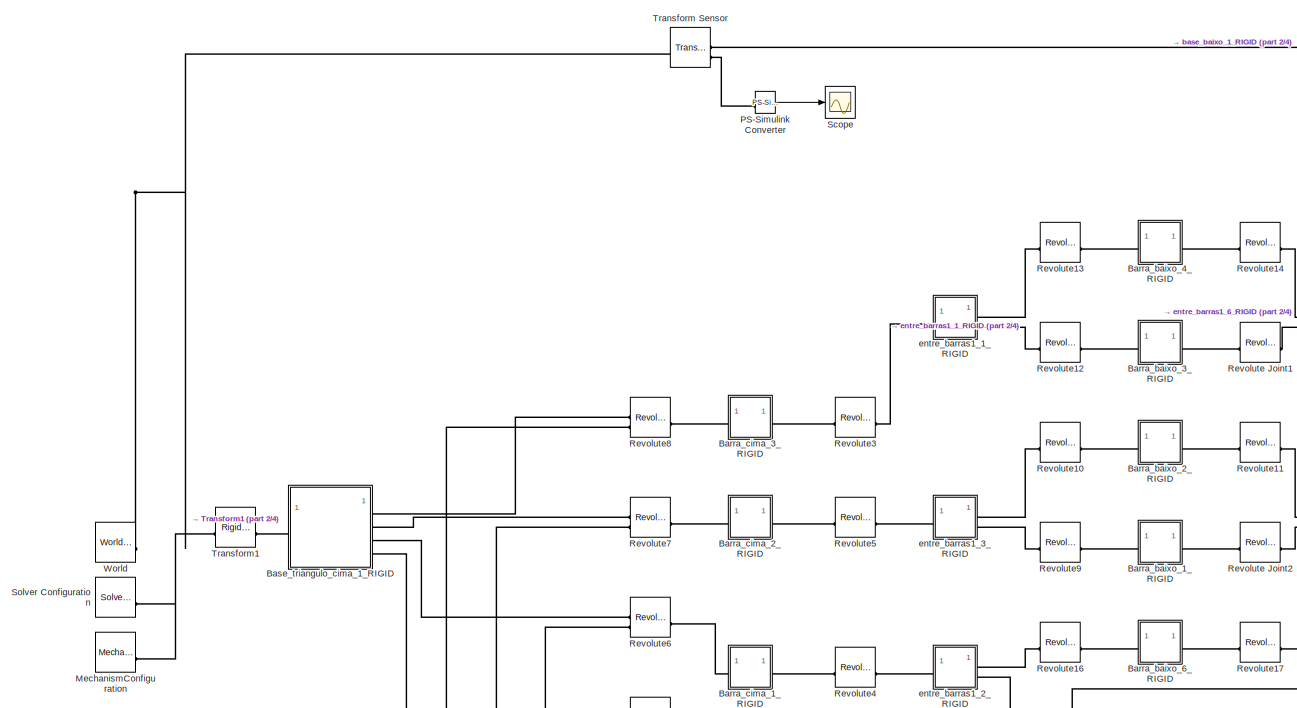
[diagram: root canvas - part 1/4, central region]
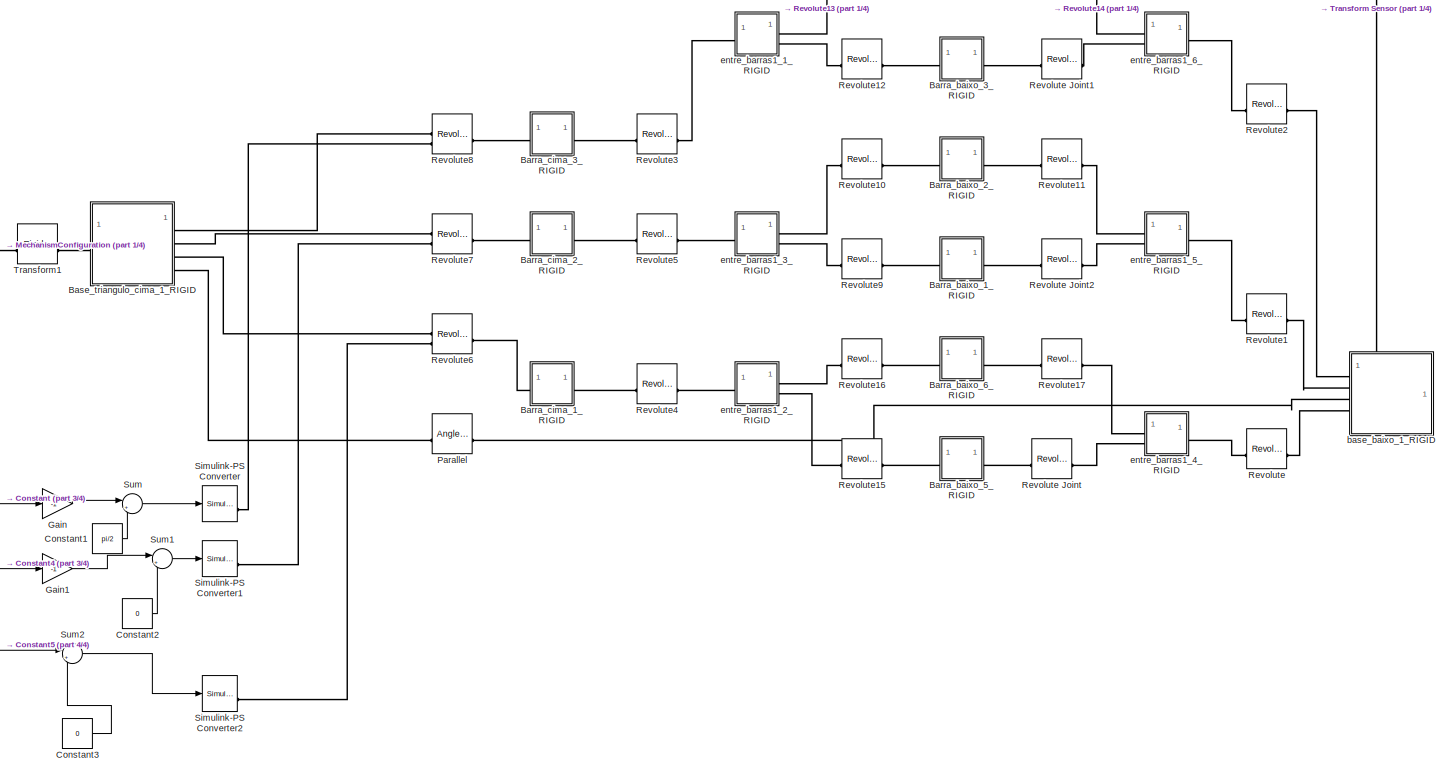
[diagram: root canvas - part 2/4, full width, middle band]
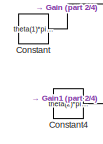
[diagram: root canvas - part 3/4, bottom left region]
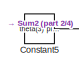
[diagram: root canvas - part 4/4, bottom left region]
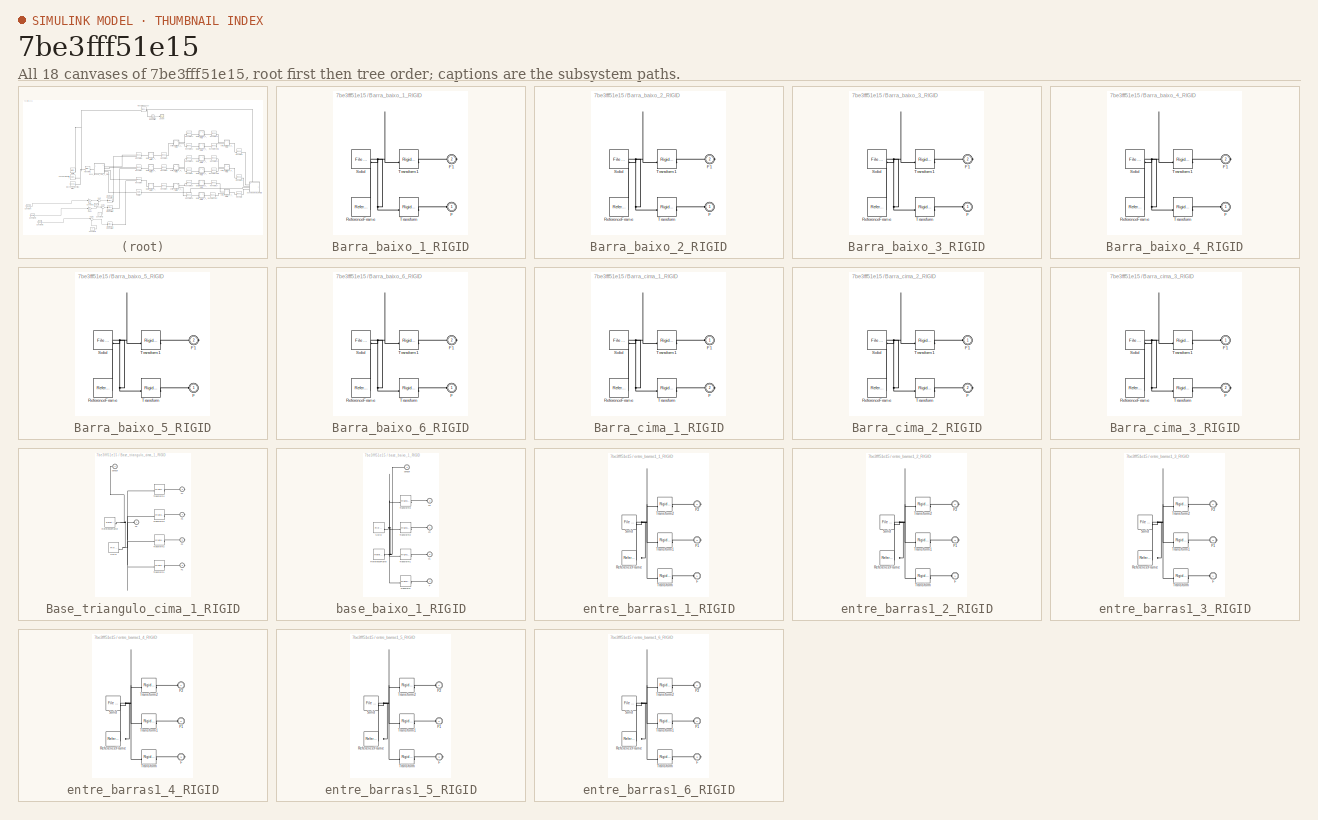
[diagram: thumbnail index - all 18 canvases of the model, root first then tree order]
MODEL slx_7be3fff51e15
KIND model
CONFIG AbsTol = auto
CONFIG EnableMultiTasking = off
CONFIG FixedStep = auto
CONFIG MaxStep = auto
CONFIG MinStep = auto
CONFIG RelTol = 1e-3
CONFIG SampleTimeConstraint = Unconstrained
CONFIG SolverName = VariableStepAuto
CONFIG StartTime = 0.0
CONFIG StopTime = 10.0
WORKSPACE source: external: MATLAB File  (data not in archive)
BLOCK [SubSystem] Barra_baixo_1_RIGID
BLOCK [PMIOPort] Barra_baixo_1_RIGID/F
  Side = Left
BLOCK [PMIOPort] Barra_baixo_1_RIGID/F1
  Port = 2
  Side = Right
BLOCK [Reference] Barra_baixo_1_RIGID/ReferenceFrame  REF=sm_lib/Frames and
Transforms/Reference
Frame
  SourceBlock = sm_lib/Frames and\nTransforms/Reference\nFrame
  SourceType = Reference\nFrame
BLOCK [Reference] Barra_baixo_1_RIGID/Solid  REF=sm_lib/Body Elements/File Solid
  SourceBlock = sm_lib/Body Elements/File Solid
  SourceType = File Solid
BLOCK [Reference] Barra_baixo_1_RIGID/Transform  REF=sm_lib/Frames and
Transforms/Rigid
Transform
  SourceBlock = sm_lib/Frames and\nTransforms/Rigid\nTransform
  SourceType = Rigid\nTransform
BLOCK [Reference] Barra_baixo_1_RIGID/Transform1  REF=sm_lib/Frames and
Transforms/Rigid
Transform
  SourceBlock = sm_lib/Frames and\nTransforms/Rigid\nTransform
  SourceType = Rigid\nTransform
BLOCK [SubSystem] Barra_baixo_2_RIGID
BLOCK [PMIOPort] Barra_baixo_2_RIGID/F
  Side = Left
BLOCK [PMIOPort] Barra_baixo_2_RIGID/F1
  Port = 2
  Side = Right
BLOCK [Reference] Barra_baixo_2_RIGID/ReferenceFrame  REF=sm_lib/Frames and
Transforms/Reference
Frame
  SourceBlock = sm_lib/Frames and\nTransforms/Reference\nFrame
  SourceType = Reference\nFrame
BLOCK [Reference] Barra_baixo_2_RIGID/Solid  REF=sm_lib/Body Elements/File Solid
  SourceBlock = sm_lib/Body Elements/File Solid
  SourceType = File Solid
BLOCK [Reference] Barra_baixo_2_RIGID/Transform  REF=sm_lib/Frames and
Transforms/Rigid
Transform
  SourceBlock = sm_lib/Frames and\nTransforms/Rigid\nTransform
  SourceType = Rigid\nTransform
BLOCK [Reference] Barra_baixo_2_RIGID/Transform1  REF=sm_lib/Frames and
Transforms/Rigid
Transform
  SourceBlock = sm_lib/Frames and\nTransforms/Rigid\nTransform
  SourceType = Rigid\nTransform
BLOCK [SubSystem] Barra_baixo_3_RIGID
BLOCK [PMIOPort] Barra_baixo_3_RIGID/F
  Side = Left
BLOCK [PMIOPort] Barra_baixo_3_RIGID/F1
  Port = 2
  Side = Right
BLOCK [Reference] Barra_baixo_3_RIGID/ReferenceFrame  REF=sm_lib/Frames and
Transforms/Reference
Frame
  SourceBlock = sm_lib/Frames and\nTransforms/Reference\nFrame
  SourceType = Reference\nFrame
BLOCK [Reference] Barra_baixo_3_RIGID/Solid  REF=sm_lib/Body Elements/File Solid
  SourceBlock = sm_lib/Body Elements/File Solid
  SourceType = File Solid
BLOCK [Reference] Barra_baixo_3_RIGID/Transform  REF=sm_lib/Frames and
Transforms/Rigid
Transform
  SourceBlock = sm_lib/Frames and\nTransforms/Rigid\nTransform
  SourceType = Rigid\nTransform
BLOCK [Reference] Barra_baixo_3_RIGID/Transform1  REF=sm_lib/Frames and
Transforms/Rigid
Transform
  SourceBlock = sm_lib/Frames and\nTransforms/Rigid\nTransform
  SourceType = Rigid\nTransform
BLOCK [SubSystem] Barra_baixo_4_RIGID
BLOCK [PMIOPort] Barra_baixo_4_RIGID/F
  Side = Left
BLOCK [PMIOPort] Barra_baixo_4_RIGID/F1
  Port = 2
  Side = Right
BLOCK [Reference] Barra_baixo_4_RIGID/ReferenceFrame  REF=sm_lib/Frames and
Transforms/Reference
Frame
  SourceBlock = sm_lib/Frames and\nTransforms/Reference\nFrame
  SourceType = Reference\nFrame
BLOCK [Reference] Barra_baixo_4_RIGID/Solid  REF=sm_lib/Body Elements/File Solid
  SourceBlock = sm_lib/Body Elements/File Solid
  SourceType = File Solid
BLOCK [Reference] Barra_baixo_4_RIGID/Transform  REF=sm_lib/Frames and
Transforms/Rigid
Transform
  SourceBlock = sm_lib/Frames and\nTransforms/Rigid\nTransform
  SourceType = Rigid\nTransform
BLOCK [Reference] Barra_baixo_4_RIGID/Transform1  REF=sm_lib/Frames and
Transforms/Rigid
Transform
  SourceBlock = sm_lib/Frames and\nTransforms/Rigid\nTransform
  SourceType = Rigid\nTransform
BLOCK [SubSystem] Barra_baixo_5_RIGID
BLOCK [PMIOPort] Barra_baixo_5_RIGID/F
  Side = Left
BLOCK [PMIOPort] Barra_baixo_5_RIGID/F1
  Port = 2
  Side = Right
BLOCK [Reference] Barra_baixo_5_RIGID/ReferenceFrame  REF=sm_lib/Frames and
Transforms/Reference
Frame
  SourceBlock = sm_lib/Frames and\nTransforms/Reference\nFrame
  SourceType = Reference\nFrame
BLOCK [Reference] Barra_baixo_5_RIGID/Solid  REF=sm_lib/Body Elements/File Solid
  SourceBlock = sm_lib/Body Elements/File Solid
  SourceType = File Solid
BLOCK [Reference] Barra_baixo_5_RIGID/Transform  REF=sm_lib/Frames and
Transforms/Rigid
Transform
  SourceBlock = sm_lib/Frames and\nTransforms/Rigid\nTransform
  SourceType = Rigid\nTransform
BLOCK [Reference] Barra_baixo_5_RIGID/Transform1  REF=sm_lib/Frames and
Transforms/Rigid
Transform
  SourceBlock = sm_lib/Frames and\nTransforms/Rigid\nTransform
  SourceType = Rigid\nTransform
BLOCK [SubSystem] Barra_baixo_6_RIGID
BLOCK [PMIOPort] Barra_baixo_6_RIGID/F
  Side = Left
BLOCK [PMIOPort] Barra_baixo_6_RIGID/F1
  Port = 2
  Side = Right
BLOCK [Reference] Barra_baixo_6_RIGID/ReferenceFrame  REF=sm_lib/Frames and
Transforms/Reference
Frame
  SourceBlock = sm_lib/Frames and\nTransforms/Reference\nFrame
  SourceType = Reference\nFrame
BLOCK [Reference] Barra_baixo_6_RIGID/Solid  REF=sm_lib/Body Elements/File Solid
  SourceBlock = sm_lib/Body Elements/File Solid
  SourceType = File Solid
BLOCK [Reference] Barra_baixo_6_RIGID/Transform  REF=sm_lib/Frames and
Transforms/Rigid
Transform
  SourceBlock = sm_lib/Frames and\nTransforms/Rigid\nTransform
  SourceType = Rigid\nTransform
BLOCK [Reference] Barra_baixo_6_RIGID/Transform1  REF=sm_lib/Frames and
Transforms/Rigid
Transform
  SourceBlock = sm_lib/Frames and\nTransforms/Rigid\nTransform
  SourceType = Rigid\nTransform
BLOCK [SubSystem] Barra_cima_1_RIGID
BLOCK [PMIOPort] Barra_cima_1_RIGID/F
  Port = 2
  Side = Right
BLOCK [PMIOPort] Barra_cima_1_RIGID/F1
  Side = Left
BLOCK [Reference] Barra_cima_1_RIGID/ReferenceFrame  REF=sm_lib/Frames and
Transforms/Reference
Frame
  SourceBlock = sm_lib/Frames and\nTransforms/Reference\nFrame
  SourceType = Reference\nFrame
BLOCK [Reference] Barra_cima_1_RIGID/Solid  REF=sm_lib/Body Elements/File Solid
  SourceBlock = sm_lib/Body Elements/File Solid
  SourceType = File Solid
BLOCK [Reference] Barra_cima_1_RIGID/Transform  REF=sm_lib/Frames and
Transforms/Rigid
Transform
  SourceBlock = sm_lib/Frames and\nTransforms/Rigid\nTransform
  SourceType = Rigid\nTransform
BLOCK [Reference] Barra_cima_1_RIGID/Transform1  REF=sm_lib/Frames and
Transforms/Rigid
Transform
  SourceBlock = sm_lib/Frames and\nTransforms/Rigid\nTransform
  SourceType = Rigid\nTransform
BLOCK [SubSystem] Barra_cima_2_RIGID
BLOCK [PMIOPort] Barra_cima_2_RIGID/F
  Port = 2
  Side = Right
BLOCK [PMIOPort] Barra_cima_2_RIGID/F1
  Side = Left
BLOCK [Reference] Barra_cima_2_RIGID/ReferenceFrame  REF=sm_lib/Frames and
Transforms/Reference
Frame
  SourceBlock = sm_lib/Frames and\nTransforms/Reference\nFrame
  SourceType = Reference\nFrame
BLOCK [Reference] Barra_cima_2_RIGID/Solid  REF=sm_lib/Body Elements/File Solid
  SourceBlock = sm_lib/Body Elements/File Solid
  SourceType = File Solid
BLOCK [Reference] Barra_cima_2_RIGID/Transform  REF=sm_lib/Frames and
Transforms/Rigid
Transform
  SourceBlock = sm_lib/Frames and\nTransforms/Rigid\nTransform
  SourceType = Rigid\nTransform
BLOCK [Reference] Barra_cima_2_RIGID/Transform1  REF=sm_lib/Frames and
Transforms/Rigid
Transform
  SourceBlock = sm_lib/Frames and\nTransforms/Rigid\nTransform
  SourceType = Rigid\nTransform
BLOCK [SubSystem] Barra_cima_3_RIGID
BLOCK [PMIOPort] Barra_cima_3_RIGID/F
  Port = 2
  Side = Right
BLOCK [PMIOPort] Barra_cima_3_RIGID/F1
  Side = Left
BLOCK [Reference] Barra_cima_3_RIGID/ReferenceFrame  REF=sm_lib/Frames and
Transforms/Reference
Frame
  SourceBlock = sm_lib/Frames and\nTransforms/Reference\nFrame
  SourceType = Reference\nFrame
BLOCK [Reference] Barra_cima_3_RIGID/Solid  REF=sm_lib/Body Elements/File Solid
  SourceBlock = sm_lib/Body Elements/File Solid
  SourceType = File Solid
BLOCK [Reference] Barra_cima_3_RIGID/Transform  REF=sm_lib/Frames and
Transforms/Rigid
Transform
  SourceBlock = sm_lib/Frames and\nTransforms/Rigid\nTransform
  SourceType = Rigid\nTransform
BLOCK [Reference] Barra_cima_3_RIGID/Transform1  REF=sm_lib/Frames and
Transforms/Rigid
Transform
  SourceBlock = sm_lib/Frames and\nTransforms/Rigid\nTransform
  SourceType = Rigid\nTransform
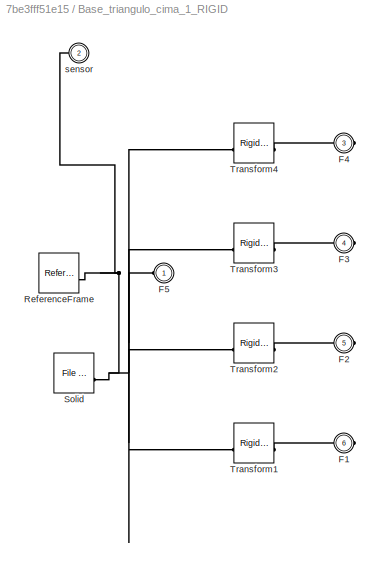
BLOCK [SubSystem] Base_triangulo_cima_1_RIGID
  PortSchema = {"entries":[{"content":{"sides":[{"content":{"connectorIds":["LConn1"]},"type":"ConnectorPlacement.EquallySpacedRectSide","uuid":"79af7b8c-6ca0-45b7-9e09-637c2dbccbeb"},{"content":{"connectorIds":["RConn1","RConn2","RConn3","RConn4"],"side":"RIGHT"},"type":"ConnectorPlacement.EquallySpacedRectSide","uuid":"ab83d0b6-8cd2-43f9-bfa3-9ec35b91d7b6"},{"content":{"connectorIds":["LConn2"],"side":"TOP"},"...<+280ch>
BLOCK [PMIOPort] Base_triangulo_cima_1_RIGID/F1
  Port = 6
  Side = Right
BLOCK [PMIOPort] Base_triangulo_cima_1_RIGID/F2
  Port = 5
  Side = Right
BLOCK [PMIOPort] Base_triangulo_cima_1_RIGID/F3
  Port = 4
  Side = Right
BLOCK [PMIOPort] Base_triangulo_cima_1_RIGID/F4
  Port = 3
  Side = Right
BLOCK [PMIOPort] Base_triangulo_cima_1_RIGID/F5
  Side = Left
BLOCK [Reference] Base_triangulo_cima_1_RIGID/ReferenceFrame  REF=sm_lib/Frames and
Transforms/Reference
Frame
  SourceBlock = sm_lib/Frames and\nTransforms/Reference\nFrame
  SourceType = Reference\nFrame
BLOCK [Reference] Base_triangulo_cima_1_RIGID/Solid  REF=sm_lib/Body Elements/File Solid
  SourceBlock = sm_lib/Body Elements/File Solid
  SourceType = File Solid
BLOCK [Reference] Base_triangulo_cima_1_RIGID/Transform1  REF=sm_lib/Frames and
Transforms/Rigid
Transform
  SourceBlock = sm_lib/Frames and\nTransforms/Rigid\nTransform
  SourceType = Rigid\nTransform
BLOCK [Reference] Base_triangulo_cima_1_RIGID/Transform2  REF=sm_lib/Frames and
Transforms/Rigid
Transform
  SourceBlock = sm_lib/Frames and\nTransforms/Rigid\nTransform
  SourceType = Rigid\nTransform
BLOCK [Reference] Base_triangulo_cima_1_RIGID/Transform3  REF=sm_lib/Frames and
Transforms/Rigid
Transform
  SourceBlock = sm_lib/Frames and\nTransforms/Rigid\nTransform
  SourceType = Rigid\nTransform
BLOCK [Reference] Base_triangulo_cima_1_RIGID/Transform4  REF=sm_lib/Frames and
Transforms/Rigid
Transform
  SourceBlock = sm_lib/Frames and\nTransforms/Rigid\nTransform
  SourceType = Rigid\nTransform
BLOCK [PMIOPort] Base_triangulo_cima_1_RIGID/sensor
  Port = 2
  Side = Left
BLOCK [Constant] Constant
  Value = theta(1)*pi/180
BLOCK [Constant] Constant1
  Value = pi/2
BLOCK [Constant] Constant2
  Value = 0
BLOCK [Constant] Constant3
  Value = 0
BLOCK [Constant] Constant4
  Value = theta(2)*pi/180
BLOCK [Constant] Constant5
  Value = theta(3)*pi/180
BLOCK [Gain] Gain
  Gain = -1
BLOCK [Gain] Gain1
  Gain = -1
BLOCK [Reference] MechanismConfiguration  REF=sm_lib/Utilities/Mechanism
Configuration
  SourceBlock = sm_lib/Utilities/Mechanism\nConfiguration
  SourceType = Mechanism\nConfiguration
BLOCK [Reference] PS-Simulink Converter  REF=nesl_utility/PS-Simulink
Converter
  SourceBlock = nesl_utility/PS-Simulink\nConverter
  SourceType = PS-Simulink\nConverter
BLOCK [Reference] Parallel  REF=sm_lib/Constraints/Angle
Constraint
  SourceBlock = sm_lib/Constraints/Angle\nConstraint
  SourceType = Angle\nConstraint
BLOCK [Reference] Revolute  REF=sm_lib/Joints/Revolute Joint
  SourceBlock = sm_lib/Joints/Revolute Joint
  SourceType = Revolute Joint
BLOCK [Reference] Revolute Joint  REF=sm_lib/Joints/Revolute Joint
  SourceBlock = sm_lib/Joints/Revolute Joint
  SourceType = Revolute Joint
BLOCK [Reference] Revolute Joint1  REF=sm_lib/Joints/Revolute Joint
  SourceBlock = sm_lib/Joints/Revolute Joint
  SourceType = Revolute Joint
BLOCK [Reference] Revolute Joint2  REF=sm_lib/Joints/Revolute Joint
  SourceBlock = sm_lib/Joints/Revolute Joint
  SourceType = Revolute Joint
BLOCK [Reference] Revolute1  REF=sm_lib/Joints/Revolute Joint
  SourceBlock = sm_lib/Joints/Revolute Joint
  SourceType = Revolute Joint
BLOCK [Reference] Revolute10  REF=sm_lib/Joints/Revolute Joint
  SourceBlock = sm_lib/Joints/Revolute Joint
  SourceType = Revolute Joint
BLOCK [Reference] Revolute11  REF=sm_lib/Joints/Revolute Joint
  SourceBlock = sm_lib/Joints/Revolute Joint
  SourceType = Revolute Joint
BLOCK [Reference] Revolute12  REF=sm_lib/Joints/Revolute Joint
  SourceBlock = sm_lib/Joints/Revolute Joint
  SourceType = Revolute Joint
BLOCK [Reference] Revolute13  REF=sm_lib/Joints/Revolute Joint
  SourceBlock = sm_lib/Joints/Revolute Joint
  SourceType = Revolute Joint
BLOCK [Reference] Revolute14  REF=sm_lib/Joints/Revolute Joint
  SourceBlock = sm_lib/Joints/Revolute Joint
  SourceType = Revolute Joint
BLOCK [Reference] Revolute15  REF=sm_lib/Joints/Revolute Joint
  SourceBlock = sm_lib/Joints/Revolute Joint
  SourceType = Revolute Joint
BLOCK [Reference] Revolute16  REF=sm_lib/Joints/Revolute Joint
  SourceBlock = sm_lib/Joints/Revolute Joint
  SourceType = Revolute Joint
BLOCK [Reference] Revolute17  REF=sm_lib/Joints/Revolute Joint
  SourceBlock = sm_lib/Joints/Revolute Joint
  SourceType = Revolute Joint
BLOCK [Reference] Revolute2  REF=sm_lib/Joints/Revolute Joint
  SourceBlock = sm_lib/Joints/Revolute Joint
  SourceType = Revolute Joint
BLOCK [Reference] Revolute3  REF=sm_lib/Joints/Revolute Joint
  SourceBlock = sm_lib/Joints/Revolute Joint
  SourceType = Revolute Joint
BLOCK [Reference] Revolute4  REF=sm_lib/Joints/Revolute Joint
  SourceBlock = sm_lib/Joints/Revolute Joint
  SourceType = Revolute Joint
BLOCK [Reference] Revolute5  REF=sm_lib/Joints/Revolute Joint
  SourceBlock = sm_lib/Joints/Revolute Joint
  SourceType = Revolute Joint
BLOCK [Reference] Revolute6  REF=sm_lib/Joints/Revolute Joint
  SourceBlock = sm_lib/Joints/Revolute Joint
  SourceType = Revolute Joint
BLOCK [Reference] Revolute7  REF=sm_lib/Joints/Revolute Joint
  SourceBlock = sm_lib/Joints/Revolute Joint
  SourceType = Revolute Joint
BLOCK [Reference] Revolute8  REF=sm_lib/Joints/Revolute Joint
  SourceBlock = sm_lib/Joints/Revolute Joint
  SourceType = Revolute Joint
BLOCK [Reference] Revolute9  REF=sm_lib/Joints/Revolute Joint
  SourceBlock = sm_lib/Joints/Revolute Joint
  SourceType = Revolute Joint
BLOCK [Scope] Scope
  Floating = off
  NumInputPorts = 1
  ScopeSpecificationString = Simulink.scopes.TimeScopeBlockCfg('CurrentConfiguration', extmgr.ConfigurationSet(extmgr.Configuration('Core','General UI',true),extmgr.Configuration('Core','Source UI',true),extmgr.Configuration('Sources','WiredSimulink',true),extmgr.Configuration('Visuals','Time Domain',true,'SerializedDisplays',{struct('MinYLimReal','-0.90667255646591','MaxYLimReal','-0.906672556465884','YLabelReal','','MinYLim...<+1508ch>
BLOCK [Reference] Simulink-PS Converter  REF=nesl_utility/Simulink-PS
Converter
  SourceBlock = nesl_utility/Simulink-PS\nConverter
  SourceType = Simulink-PS\nConverter
BLOCK [Reference] Simulink-PS Converter1  REF=nesl_utility/Simulink-PS
Converter
  SourceBlock = nesl_utility/Simulink-PS\nConverter
  SourceType = Simulink-PS\nConverter
BLOCK [Reference] Simulink-PS Converter2  REF=nesl_utility/Simulink-PS
Converter
  SourceBlock = nesl_utility/Simulink-PS\nConverter
  SourceType = Simulink-PS\nConverter
BLOCK [Reference] Solver Configuration  REF=nesl_utility/Solver
Configuration
  SourceBlock = nesl_utility/Solver\nConfiguration
  SourceType = Solver\nConfiguration
BLOCK [Sum] Sum
  Inputs = |+-
BLOCK [Sum] Sum1
  Inputs = |++
BLOCK [Sum] Sum2
  Inputs = |+-
BLOCK [Reference] Transform Sensor  REF=sm_lib/Frames and
Transforms/Transform
Sensor
  SourceBlock = sm_lib/Frames and\nTransforms/Transform\nSensor
  SourceType = Transform\nSensor
BLOCK [Reference] Transform1  REF=sm_lib/Frames and
Transforms/Rigid
Transform
  SourceBlock = sm_lib/Frames and\nTransforms/Rigid\nTransform
  SourceType = Rigid\nTransform
BLOCK [Reference] World  REF=sm_lib/Frames and
Transforms/World Frame
  SourceBlock = sm_lib/Frames and\nTransforms/World Frame
  SourceType = World Frame
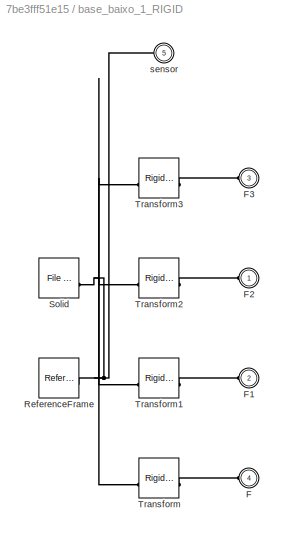
BLOCK [SubSystem] base_baixo_1_RIGID
  PortSchema = {"entries":[{"content":{"sides":[{"content":{"connectorIds":["LConn1","LConn2","LConn3","LConn4"]},"type":"ConnectorPlacement.EquallySpacedRectSide","uuid":"f734147c-4e5f-4803-8317-c979e4c113c1"},{"content":{"side":"RIGHT"},"type":"ConnectorPlacement.EquallySpacedRectSide","uuid":"b5e302f5-69e3-4c17-a1b7-9b51f74a56e4"},{"content":{"connectorIds":["LConn5"],"side":"TOP"},"type":"ConnectorPlacement....<+254ch>
BLOCK [PMIOPort] base_baixo_1_RIGID/F
  Port = 4
  Side = Left
BLOCK [PMIOPort] base_baixo_1_RIGID/F1
  Port = 2
  Side = Left
BLOCK [PMIOPort] base_baixo_1_RIGID/F2
  Side = Left
BLOCK [PMIOPort] base_baixo_1_RIGID/F3
  Port = 3
  Side = Left
BLOCK [Reference] base_baixo_1_RIGID/ReferenceFrame  REF=sm_lib/Frames and
Transforms/Reference
Frame
  SourceBlock = sm_lib/Frames and\nTransforms/Reference\nFrame
  SourceType = Reference\nFrame
BLOCK [Reference] base_baixo_1_RIGID/Solid  REF=sm_lib/Body Elements/File Solid
  SourceBlock = sm_lib/Body Elements/File Solid
  SourceType = File Solid
BLOCK [Reference] base_baixo_1_RIGID/Transform  REF=sm_lib/Frames and
Transforms/Rigid
Transform
  SourceBlock = sm_lib/Frames and\nTransforms/Rigid\nTransform
  SourceType = Rigid\nTransform
BLOCK [Reference] base_baixo_1_RIGID/Transform1  REF=sm_lib/Frames and
Transforms/Rigid
Transform
  SourceBlock = sm_lib/Frames and\nTransforms/Rigid\nTransform
  SourceType = Rigid\nTransform
BLOCK [Reference] base_baixo_1_RIGID/Transform2  REF=sm_lib/Frames and
Transforms/Rigid
Transform
  SourceBlock = sm_lib/Frames and\nTransforms/Rigid\nTransform
  SourceType = Rigid\nTransform
BLOCK [Reference] base_baixo_1_RIGID/Transform3  REF=sm_lib/Frames and
Transforms/Rigid
Transform
  SourceBlock = sm_lib/Frames and\nTransforms/Rigid\nTransform
  SourceType = Rigid\nTransform
BLOCK [PMIOPort] base_baixo_1_RIGID/sensor
  Port = 5
  Side = Left
BLOCK [SubSystem] entre_barras1_1_RIGID
BLOCK [PMIOPort] entre_barras1_1_RIGID/F
  Side = Left
BLOCK [PMIOPort] entre_barras1_1_RIGID/F1
  Port = 3
  Side = Right
BLOCK [PMIOPort] entre_barras1_1_RIGID/F2
  Port = 2
  Side = Right
BLOCK [Reference] entre_barras1_1_RIGID/ReferenceFrame  REF=sm_lib/Frames and
Transforms/Reference
Frame
  SourceBlock = sm_lib/Frames and\nTransforms/Reference\nFrame
  SourceType = Reference\nFrame
BLOCK [Reference] entre_barras1_1_RIGID/Solid  REF=sm_lib/Body Elements/File Solid
  SourceBlock = sm_lib/Body Elements/File Solid
  SourceType = File Solid
BLOCK [Reference] entre_barras1_1_RIGID/Transform  REF=sm_lib/Frames and
Transforms/Rigid
Transform
  SourceBlock = sm_lib/Frames and\nTransforms/Rigid\nTransform
  SourceType = Rigid\nTransform
BLOCK [Reference] entre_barras1_1_RIGID/Transform1  REF=sm_lib/Frames and
Transforms/Rigid
Transform
  SourceBlock = sm_lib/Frames and\nTransforms/Rigid\nTransform
  SourceType = Rigid\nTransform
BLOCK [Reference] entre_barras1_1_RIGID/Transform2  REF=sm_lib/Frames and
Transforms/Rigid
Transform
  SourceBlock = sm_lib/Frames and\nTransforms/Rigid\nTransform
  SourceType = Rigid\nTransform
BLOCK [SubSystem] entre_barras1_2_RIGID
BLOCK [PMIOPort] entre_barras1_2_RIGID/F
  Side = Left
BLOCK [PMIOPort] entre_barras1_2_RIGID/F1
  Port = 3
  Side = Right
BLOCK [PMIOPort] entre_barras1_2_RIGID/F2
  Port = 2
  Side = Right
BLOCK [Reference] entre_barras1_2_RIGID/ReferenceFrame  REF=sm_lib/Frames and
Transforms/Reference
Frame
  SourceBlock = sm_lib/Frames and\nTransforms/Reference\nFrame
  SourceType = Reference\nFrame
BLOCK [Reference] entre_barras1_2_RIGID/Solid  REF=sm_lib/Body Elements/File Solid
  SourceBlock = sm_lib/Body Elements/File Solid
  SourceType = File Solid
BLOCK [Reference] entre_barras1_2_RIGID/Transform  REF=sm_lib/Frames and
Transforms/Rigid
Transform
  SourceBlock = sm_lib/Frames and\nTransforms/Rigid\nTransform
  SourceType = Rigid\nTransform
BLOCK [Reference] entre_barras1_2_RIGID/Transform1  REF=sm_lib/Frames and
Transforms/Rigid
Transform
  SourceBlock = sm_lib/Frames and\nTransforms/Rigid\nTransform
  SourceType = Rigid\nTransform
BLOCK [Reference] entre_barras1_2_RIGID/Transform2  REF=sm_lib/Frames and
Transforms/Rigid
Transform
  SourceBlock = sm_lib/Frames and\nTransforms/Rigid\nTransform
  SourceType = Rigid\nTransform
BLOCK [SubSystem] entre_barras1_3_RIGID
BLOCK [PMIOPort] entre_barras1_3_RIGID/F
  Side = Left
BLOCK [PMIOPort] entre_barras1_3_RIGID/F1
  Port = 3
  Side = Right
BLOCK [PMIOPort] entre_barras1_3_RIGID/F2
  Port = 2
  Side = Right
BLOCK [Reference] entre_barras1_3_RIGID/ReferenceFrame  REF=sm_lib/Frames and
Transforms/Reference
Frame
  SourceBlock = sm_lib/Frames and\nTransforms/Reference\nFrame
  SourceType = Reference\nFrame
BLOCK [Reference] entre_barras1_3_RIGID/Solid  REF=sm_lib/Body Elements/File Solid
  SourceBlock = sm_lib/Body Elements/File Solid
  SourceType = File Solid
BLOCK [Reference] entre_barras1_3_RIGID/Transform  REF=sm_lib/Frames and
Transforms/Rigid
Transform
  SourceBlock = sm_lib/Frames and\nTransforms/Rigid\nTransform
  SourceType = Rigid\nTransform
BLOCK [Reference] entre_barras1_3_RIGID/Transform1  REF=sm_lib/Frames and
Transforms/Rigid
Transform
  SourceBlock = sm_lib/Frames and\nTransforms/Rigid\nTransform
  SourceType = Rigid\nTransform
BLOCK [Reference] entre_barras1_3_RIGID/Transform2  REF=sm_lib/Frames and
Transforms/Rigid
Transform
  SourceBlock = sm_lib/Frames and\nTransforms/Rigid\nTransform
  SourceType = Rigid\nTransform
BLOCK [SubSystem] entre_barras1_4_RIGID
BLOCK [PMIOPort] entre_barras1_4_RIGID/F
  Port = 3
  Side = Right
BLOCK [PMIOPort] entre_barras1_4_RIGID/F1
  Port = 2
  Side = Left
BLOCK [PMIOPort] entre_barras1_4_RIGID/F2
  Side = Left
BLOCK [Reference] entre_barras1_4_RIGID/ReferenceFrame  REF=sm_lib/Frames and
Transforms/Reference
Frame
  SourceBlock = sm_lib/Frames and\nTransforms/Reference\nFrame
  SourceType = Reference\nFrame
BLOCK [Reference] entre_barras1_4_RIGID/Solid  REF=sm_lib/Body Elements/File Solid
  SourceBlock = sm_lib/Body Elements/File Solid
  SourceType = File Solid
BLOCK [Reference] entre_barras1_4_RIGID/Transform  REF=sm_lib/Frames and
Transforms/Rigid
Transform
  SourceBlock = sm_lib/Frames and\nTransforms/Rigid\nTransform
  SourceType = Rigid\nTransform
BLOCK [Reference] entre_barras1_4_RIGID/Transform1  REF=sm_lib/Frames and
Transforms/Rigid
Transform
  SourceBlock = sm_lib/Frames and\nTransforms/Rigid\nTransform
  SourceType = Rigid\nTransform
BLOCK [Reference] entre_barras1_4_RIGID/Transform2  REF=sm_lib/Frames and
Transforms/Rigid
Transform
  SourceBlock = sm_lib/Frames and\nTransforms/Rigid\nTransform
  SourceType = Rigid\nTransform
BLOCK [SubSystem] entre_barras1_5_RIGID
BLOCK [PMIOPort] entre_barras1_5_RIGID/F
  Port = 3
  Side = Right
BLOCK [PMIOPort] entre_barras1_5_RIGID/F1
  Port = 2
  Side = Left
BLOCK [PMIOPort] entre_barras1_5_RIGID/F2
  Side = Left
BLOCK [Reference] entre_barras1_5_RIGID/ReferenceFrame  REF=sm_lib/Frames and
Transforms/Reference
Frame
  SourceBlock = sm_lib/Frames and\nTransforms/Reference\nFrame
  SourceType = Reference\nFrame
BLOCK [Reference] entre_barras1_5_RIGID/Solid  REF=sm_lib/Body Elements/File Solid
  SourceBlock = sm_lib/Body Elements/File Solid
  SourceType = File Solid
BLOCK [Reference] entre_barras1_5_RIGID/Transform  REF=sm_lib/Frames and
Transforms/Rigid
Transform
  SourceBlock = sm_lib/Frames and\nTransforms/Rigid\nTransform
  SourceType = Rigid\nTransform
BLOCK [Reference] entre_barras1_5_RIGID/Transform1  REF=sm_lib/Frames and
Transforms/Rigid
Transform
  SourceBlock = sm_lib/Frames and\nTransforms/Rigid\nTransform
  SourceType = Rigid\nTransform
BLOCK [Reference] entre_barras1_5_RIGID/Transform2  REF=sm_lib/Frames and
Transforms/Rigid
Transform
  SourceBlock = sm_lib/Frames and\nTransforms/Rigid\nTransform
  SourceType = Rigid\nTransform
BLOCK [SubSystem] entre_barras1_6_RIGID
BLOCK [PMIOPort] entre_barras1_6_RIGID/F
  Port = 3
  Side = Right
BLOCK [PMIOPort] entre_barras1_6_RIGID/F1
  Port = 2
  Side = Left
BLOCK [PMIOPort] entre_barras1_6_RIGID/F2
  Side = Left
BLOCK [Reference] entre_barras1_6_RIGID/ReferenceFrame  REF=sm_lib/Frames and
Transforms/Reference
Frame
  SourceBlock = sm_lib/Frames and\nTransforms/Reference\nFrame
  SourceType = Reference\nFrame
BLOCK [Reference] entre_barras1_6_RIGID/Solid  REF=sm_lib/Body Elements/File Solid
  SourceBlock = sm_lib/Body Elements/File Solid
  SourceType = File Solid
BLOCK [Reference] entre_barras1_6_RIGID/Transform  REF=sm_lib/Frames and
Transforms/Rigid
Transform
  SourceBlock = sm_lib/Frames and\nTransforms/Rigid\nTransform
  SourceType = Rigid\nTransform
BLOCK [Reference] entre_barras1_6_RIGID/Transform1  REF=sm_lib/Frames and
Transforms/Rigid
Transform
  SourceBlock = sm_lib/Frames and\nTransforms/Rigid\nTransform
  SourceType = Rigid\nTransform
BLOCK [Reference] entre_barras1_6_RIGID/Transform2  REF=sm_lib/Frames and
Transforms/Rigid
Transform
  SourceBlock = sm_lib/Frames and\nTransforms/Rigid\nTransform
  SourceType = Rigid\nTransform
LINE Constant1:1 -> Sum:2
LINE Constant2:1 -> Sum1:2
LINE Constant3:1 -> Sum2:2
LINE Constant4:1 -> Gain1:1
LINE Constant5:1 -> Sum2:1
LINE Constant:1 -> Gain:1
LINE Gain1:1 -> Sum1:1
LINE Gain:1 -> Sum:1
LINE PS-Simulink Converter:1 -> Scope:1
LINE Sum1:1 -> Simulink-PS Converter1:1
LINE Sum2:1 -> Simulink-PS Converter2:1
LINE Sum:1 -> Simulink-PS Converter:1
PLINE Barra_baixo_1_RIGID/F1:RConn1 -- Barra_baixo_1_RIGID/Transform1:RConn1
PLINE Barra_baixo_1_RIGID/F:RConn1 -- Barra_baixo_1_RIGID/Transform:RConn1
PNET net1: Barra_baixo_1_RIGID/ReferenceFrame:RConn1 -- Barra_baixo_1_RIGID/Solid:RConn1 -- Barra_baixo_1_RIGID/Transform1:LConn1 -- Barra_baixo_1_RIGID/Transform:LConn1
PLINE Barra_baixo_1_RIGID:LConn1 -- Revolute9:RConn1
PLINE Barra_baixo_1_RIGID:RConn1 -- Revolute Joint2:LConn1
PLINE Barra_baixo_2_RIGID/F1:RConn1 -- Barra_baixo_2_RIGID/Transform1:RConn1
PLINE Barra_baixo_2_RIGID/F:RConn1 -- Barra_baixo_2_RIGID/Transform:RConn1
PNET net2: Barra_baixo_2_RIGID/ReferenceFrame:RConn1 -- Barra_baixo_2_RIGID/Solid:RConn1 -- Barra_baixo_2_RIGID/Transform1:LConn1 -- Barra_baixo_2_RIGID/Transform:LConn1
PLINE Barra_baixo_2_RIGID:LConn1 -- Revolute10:RConn1
PLINE Barra_baixo_2_RIGID:RConn1 -- Revolute11:LConn1
PLINE Barra_baixo_3_RIGID/F1:RConn1 -- Barra_baixo_3_RIGID/Transform1:RConn1
PLINE Barra_baixo_3_RIGID/F:RConn1 -- Barra_baixo_3_RIGID/Transform:RConn1
PNET net3: Barra_baixo_3_RIGID/ReferenceFrame:RConn1 -- Barra_baixo_3_RIGID/Solid:RConn1 -- Barra_baixo_3_RIGID/Transform1:LConn1 -- Barra_baixo_3_RIGID/Transform:LConn1
PLINE Barra_baixo_3_RIGID:LConn1 -- Revolute12:RConn1
PLINE Barra_baixo_3_RIGID:RConn1 -- Revolute Joint1:LConn1
PLINE Barra_baixo_4_RIGID/F1:RConn1 -- Barra_baixo_4_RIGID/Transform1:RConn1
PLINE Barra_baixo_4_RIGID/F:RConn1 -- Barra_baixo_4_RIGID/Transform:RConn1
PNET net4: Barra_baixo_4_RIGID/ReferenceFrame:RConn1 -- Barra_baixo_4_RIGID/Solid:RConn1 -- Barra_baixo_4_RIGID/Transform1:LConn1 -- Barra_baixo_4_RIGID/Transform:LConn1
PLINE Barra_baixo_4_RIGID:LConn1 -- Revolute13:RConn1
PLINE Barra_baixo_4_RIGID:RConn1 -- Revolute14:LConn1
PLINE Barra_baixo_5_RIGID/F1:RConn1 -- Barra_baixo_5_RIGID/Transform1:RConn1
PLINE Barra_baixo_5_RIGID/F:RConn1 -- Barra_baixo_5_RIGID/Transform:RConn1
PNET net5: Barra_baixo_5_RIGID/ReferenceFrame:RConn1 -- Barra_baixo_5_RIGID/Solid:RConn1 -- Barra_baixo_5_RIGID/Transform1:LConn1 -- Barra_baixo_5_RIGID/Transform:LConn1
PLINE Barra_baixo_5_RIGID:LConn1 -- Revolute15:RConn1
PLINE Barra_baixo_5_RIGID:RConn1 -- Revolute Joint:LConn1
PLINE Barra_baixo_6_RIGID/F1:RConn1 -- Barra_baixo_6_RIGID/Transform1:RConn1
PLINE Barra_baixo_6_RIGID/F:RConn1 -- Barra_baixo_6_RIGID/Transform:RConn1
PNET net6: Barra_baixo_6_RIGID/ReferenceFrame:RConn1 -- Barra_baixo_6_RIGID/Solid:RConn1 -- Barra_baixo_6_RIGID/Transform1:LConn1 -- Barra_baixo_6_RIGID/Transform:LConn1
PLINE Barra_baixo_6_RIGID:LConn1 -- Revolute16:RConn1
PLINE Barra_baixo_6_RIGID:RConn1 -- Revolute17:LConn1
PLINE Barra_cima_1_RIGID/F1:RConn1 -- Barra_cima_1_RIGID/Transform1:RConn1
PLINE Barra_cima_1_RIGID/F:RConn1 -- Barra_cima_1_RIGID/Transform:RConn1
PNET net7: Barra_cima_1_RIGID/ReferenceFrame:RConn1 -- Barra_cima_1_RIGID/Solid:RConn1 -- Barra_cima_1_RIGID/Transform1:LConn1 -- Barra_cima_1_RIGID/Transform:LConn1
PLINE Barra_cima_1_RIGID:LConn1 -- Revolute6:RConn1
PLINE Barra_cima_1_RIGID:RConn1 -- Revolute4:LConn1
PLINE Barra_cima_2_RIGID/F1:RConn1 -- Barra_cima_2_RIGID/Transform1:RConn1
PLINE Barra_cima_2_RIGID/F:RConn1 -- Barra_cima_2_RIGID/Transform:RConn1
PNET net8: Barra_cima_2_RIGID/ReferenceFrame:RConn1 -- Barra_cima_2_RIGID/Solid:RConn1 -- Barra_cima_2_RIGID/Transform1:LConn1 -- Barra_cima_2_RIGID/Transform:LConn1
PLINE Barra_cima_2_RIGID:LConn1 -- Revolute7:RConn1
PLINE Barra_cima_2_RIGID:RConn1 -- Revolute5:LConn1
PLINE Barra_cima_3_RIGID/F1:RConn1 -- Barra_cima_3_RIGID/Transform1:RConn1
PLINE Barra_cima_3_RIGID/F:RConn1 -- Barra_cima_3_RIGID/Transform:RConn1
PNET net9: Barra_cima_3_RIGID/ReferenceFrame:RConn1 -- Barra_cima_3_RIGID/Solid:RConn1 -- Barra_cima_3_RIGID/Transform1:LConn1 -- Barra_cima_3_RIGID/Transform:LConn1
PLINE Barra_cima_3_RIGID:LConn1 -- Revolute8:RConn1
PLINE Barra_cima_3_RIGID:RConn1 -- Revolute3:LConn1
PLINE Base_triangulo_cima_1_RIGID/F1:RConn1 -- Base_triangulo_cima_1_RIGID/Transform1:RConn1
PLINE Base_triangulo_cima_1_RIGID/F2:RConn1 -- Base_triangulo_cima_1_RIGID/Transform2:RConn1
PLINE Base_triangulo_cima_1_RIGID/F3:RConn1 -- Base_triangulo_cima_1_RIGID/Transform3:RConn1
PLINE Base_triangulo_cima_1_RIGID/F4:RConn1 -- Base_triangulo_cima_1_RIGID/Transform4:RConn1
PNET net10: Base_triangulo_cima_1_RIGID/F5:RConn1 -- Base_triangulo_cima_1_RIGID/ReferenceFrame:RConn1 -- Base_triangulo_cima_1_RIGID/Solid:RConn1 -- Base_triangulo_cima_1_RIGID/Transform1:LConn1 -- Base_triangulo_cima_1_RIGID/Transform2:LConn1 -- Base_triangulo_cima_1_RIGID/Transform3:LConn1 -- Base_triangulo_cima_1_RIGID/Transform4:LConn1 -- Base_triangulo_cima_1_RIGID/sensor:RConn1
PLINE Base_triangulo_cima_1_RIGID:LConn1 -- Transform1:RConn1
PLINE Base_triangulo_cima_1_RIGID:RConn1 -- Revolute8:LConn1
PLINE Base_triangulo_cima_1_RIGID:RConn2 -- Revolute7:LConn1
PLINE Base_triangulo_cima_1_RIGID:RConn3 -- Revolute6:LConn1
PLINE Base_triangulo_cima_1_RIGID:RConn4 -- Parallel:LConn1
PNET net11: MechanismConfiguration:RConn1 -- Solver Configuration:RConn1 -- Transform Sensor:LConn1 -- Transform1:LConn1 -- World:RConn1
PLINE PS-Simulink Converter:LConn1 -- Transform Sensor:RConn2
PLINE Parallel:RConn1 -- base_baixo_1_RIGID:LConn3
PLINE Revolute Joint1:RConn1 -- entre_barras1_6_RIGID:LConn2
PLINE Revolute Joint2:RConn1 -- entre_barras1_5_RIGID:LConn2
PLINE Revolute Joint:RConn1 -- entre_barras1_4_RIGID:LConn2
PLINE Revolute10:LConn1 -- entre_barras1_3_RIGID:RConn1
PLINE Revolute11:RConn1 -- entre_barras1_5_RIGID:LConn1
PLINE Revolute12:LConn1 -- entre_barras1_1_RIGID:RConn2
PLINE Revolute13:LConn1 -- entre_barras1_1_RIGID:RConn1
PLINE Revolute14:RConn1 -- entre_barras1_6_RIGID:LConn1
PLINE Revolute15:LConn1 -- entre_barras1_2_RIGID:RConn2
PLINE Revolute16:LConn1 -- entre_barras1_2_RIGID:RConn1
PLINE Revolute17:RConn1 -- entre_barras1_4_RIGID:LConn1
PLINE Revolute1:LConn1 -- entre_barras1_5_RIGID:RConn1
PLINE Revolute1:RConn1 -- base_baixo_1_RIGID:LConn2
PLINE Revolute2:LConn1 -- entre_barras1_6_RIGID:RConn1
PLINE Revolute2:RConn1 -- base_baixo_1_RIGID:LConn1
PLINE Revolute3:RConn1 -- entre_barras1_1_RIGID:LConn1
PLINE Revolute4:RConn1 -- entre_barras1_2_RIGID:LConn1
PLINE Revolute5:RConn1 -- entre_barras1_3_RIGID:LConn1
PLINE Revolute6:LConn2 -- Simulink-PS Converter2:RConn1
PLINE Revolute7:LConn2 -- Simulink-PS Converter1:RConn1
PLINE Revolute8:LConn2 -- Simulink-PS Converter:RConn1
PLINE Revolute9:LConn1 -- entre_barras1_3_RIGID:RConn2
PLINE Revolute:LConn1 -- entre_barras1_4_RIGID:RConn1
PLINE Revolute:RConn1 -- base_baixo_1_RIGID:LConn4
PLINE Transform Sensor:RConn1 -- base_baixo_1_RIGID:LConn5
PLINE base_baixo_1_RIGID/F1:RConn1 -- base_baixo_1_RIGID/Transform1:RConn1
PLINE base_baixo_1_RIGID/F2:RConn1 -- base_baixo_1_RIGID/Transform2:RConn1
PLINE base_baixo_1_RIGID/F3:RConn1 -- base_baixo_1_RIGID/Transform3:RConn1
PLINE base_baixo_1_RIGID/F:RConn1 -- base_baixo_1_RIGID/Transform:RConn1
PNET net12: base_baixo_1_RIGID/ReferenceFrame:RConn1 -- base_baixo_1_RIGID/Solid:RConn1 -- base_baixo_1_RIGID/Transform1:LConn1 -- base_baixo_1_RIGID/Transform2:LConn1 -- base_baixo_1_RIGID/Transform3:LConn1 -- base_baixo_1_RIGID/Transform:LConn1 -- base_baixo_1_RIGID/sensor:RConn1
PLINE entre_barras1_1_RIGID/F1:RConn1 -- entre_barras1_1_RIGID/Transform1:RConn1
PLINE entre_barras1_1_RIGID/F2:RConn1 -- entre_barras1_1_RIGID/Transform2:RConn1
PLINE entre_barras1_1_RIGID/F:RConn1 -- entre_barras1_1_RIGID/Transform:RConn1
PNET net13: entre_barras1_1_RIGID/ReferenceFrame:RConn1 -- entre_barras1_1_RIGID/Solid:RConn1 -- entre_barras1_1_RIGID/Transform1:LConn1 -- entre_barras1_1_RIGID/Transform2:LConn1 -- entre_barras1_1_RIGID/Transform:LConn1
PLINE entre_barras1_2_RIGID/F1:RConn1 -- entre_barras1_2_RIGID/Transform1:RConn1
PLINE entre_barras1_2_RIGID/F2:RConn1 -- entre_barras1_2_RIGID/Transform2:RConn1
PLINE entre_barras1_2_RIGID/F:RConn1 -- entre_barras1_2_RIGID/Transform:RConn1
PNET net14: entre_barras1_2_RIGID/ReferenceFrame:RConn1 -- entre_barras1_2_RIGID/Solid:RConn1 -- entre_barras1_2_RIGID/Transform1:LConn1 -- entre_barras1_2_RIGID/Transform2:LConn1 -- entre_barras1_2_RIGID/Transform:LConn1
PLINE entre_barras1_3_RIGID/F1:RConn1 -- entre_barras1_3_RIGID/Transform1:RConn1
PLINE entre_barras1_3_RIGID/F2:RConn1 -- entre_barras1_3_RIGID/Transform2:RConn1
PLINE entre_barras1_3_RIGID/F:RConn1 -- entre_barras1_3_RIGID/Transform:RConn1
PNET net15: entre_barras1_3_RIGID/ReferenceFrame:RConn1 -- entre_barras1_3_RIGID/Solid:RConn1 -- entre_barras1_3_RIGID/Transform1:LConn1 -- entre_barras1_3_RIGID/Transform2:LConn1 -- entre_barras1_3_RIGID/Transform:LConn1
PLINE entre_barras1_4_RIGID/F1:RConn1 -- entre_barras1_4_RIGID/Transform1:RConn1
PLINE entre_barras1_4_RIGID/F2:RConn1 -- entre_barras1_4_RIGID/Transform2:RConn1
PLINE entre_barras1_4_RIGID/F:RConn1 -- entre_barras1_4_RIGID/Transform:RConn1
PNET net16: entre_barras1_4_RIGID/ReferenceFrame:RConn1 -- entre_barras1_4_RIGID/Solid:RConn1 -- entre_barras1_4_RIGID/Transform1:LConn1 -- entre_barras1_4_RIGID/Transform2:LConn1 -- entre_barras1_4_RIGID/Transform:LConn1
PLINE entre_barras1_5_RIGID/F1:RConn1 -- entre_barras1_5_RIGID/Transform1:RConn1
PLINE entre_barras1_5_RIGID/F2:RConn1 -- entre_barras1_5_RIGID/Transform2:RConn1
PLINE entre_barras1_5_RIGID/F:RConn1 -- entre_barras1_5_RIGID/Transform:RConn1
PNET net17: entre_barras1_5_RIGID/ReferenceFrame:RConn1 -- entre_barras1_5_RIGID/Solid:RConn1 -- entre_barras1_5_RIGID/Transform1:LConn1 -- entre_barras1_5_RIGID/Transform2:LConn1 -- entre_barras1_5_RIGID/Transform:LConn1
PLINE entre_barras1_6_RIGID/F1:RConn1 -- entre_barras1_6_RIGID/Transform1:RConn1
PLINE entre_barras1_6_RIGID/F2:RConn1 -- entre_barras1_6_RIGID/Transform2:RConn1
PLINE entre_barras1_6_RIGID/F:RConn1 -- entre_barras1_6_RIGID/Transform:RConn1
PNET net18: entre_barras1_6_RIGID/ReferenceFrame:RConn1 -- entre_barras1_6_RIGID/Solid:RConn1 -- entre_barras1_6_RIGID/Transform1:LConn1 -- entre_barras1_6_RIGID/Transform2:LConn1 -- entre_barras1_6_RIGID/Transform:LConn1
note: PNET lines group multi-terminal physical nets as a canonical sorted terminal list (undirected conserving connections); 2-terminal nets keep the pairwise PLINE form
